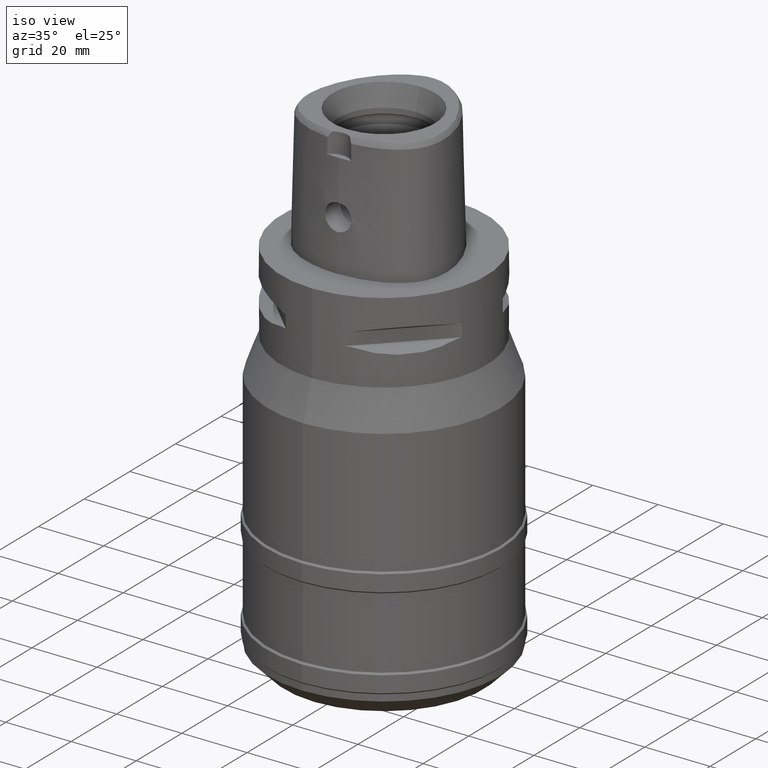
[diagram: clean part render]
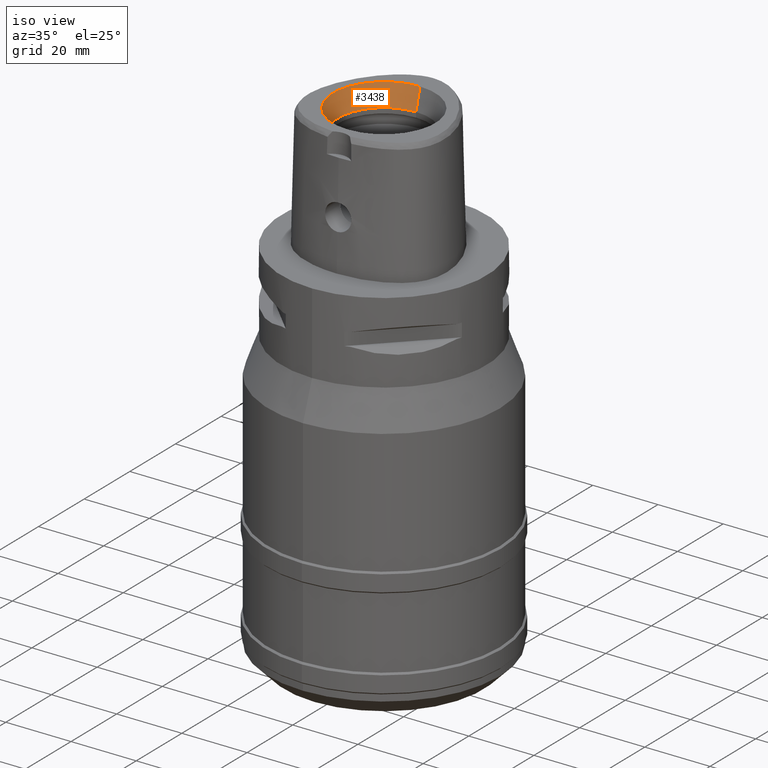
[diagram: same view with one face highlighted and labeled with its STEP entity id]
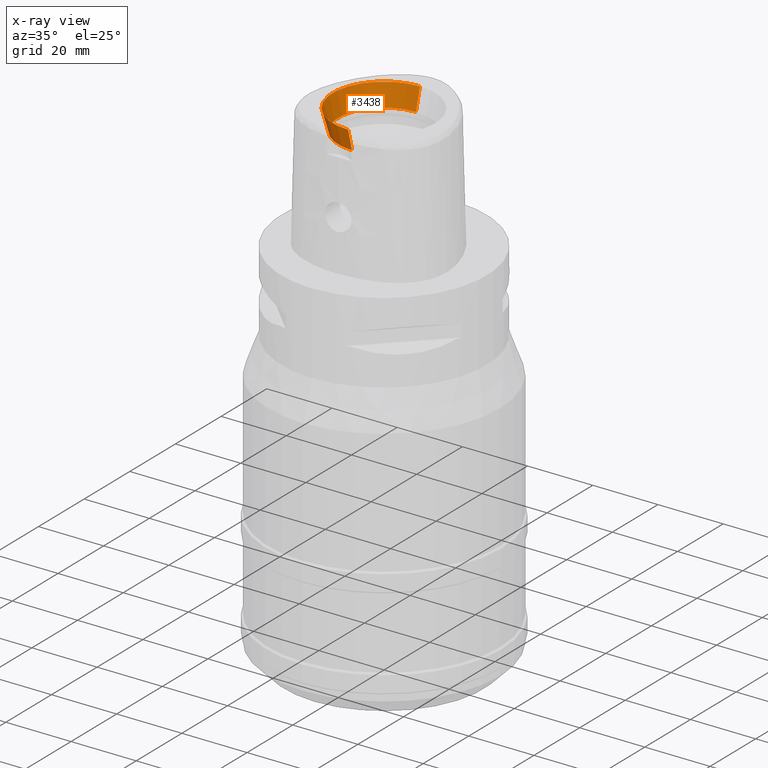
[diagram: x-ray of the same camera — body ghosted, the highlighted face saturated]
A machine part, iso view. The second image highlights one B-rep face of the part: STEP entity #3438.
The next image is the same camera in x-ray: the body ghosted, the highlighted face saturated — about 0% of this face is hidden behind the body in this view.
In plain terms, the highlighted conical surface has half-angle 15 deg.
Its self-contained STEP definition (entity closure, byte-faithful):
#116=CARTESIAN_POINT('',(0.E0,0.E0,3.8E1));
#117=DIRECTION('',(0.E0,0.E0,1.E0));
#118=DIRECTION('',(0.E0,1.E0,0.E0));
#119=AXIS2_PLACEMENT_3D('',#116,#117,#118);
#1368=CARTESIAN_POINT('',(0.E0,0.E0,3.16E1));
#1369=DIRECTION('',(0.E0,0.E0,1.E0));
#1370=DIRECTION('',(0.E0,1.E0,0.E0));
#1371=AXIS2_PLACEMENT_3D('',#1368,#1369,#1370);
#1376=DIRECTION('',(0.E0,-2.588190451026E-1,9.659258262891E-1));
#1377=VECTOR('',#1376,6.625767554625E0);
#1378=CARTESIAN_POINT('',(0.E0,-1.4E1,3.16E1));
#1379=LINE('',#1378,#1377);
#1391=DIRECTION('',(0.E0,2.588190451026E-1,9.659258262891E-1));
#1392=VECTOR('',#1391,6.625767554625E0);
#1393=CARTESIAN_POINT('',(0.E0,1.4E1,3.16E1));
#1394=LINE('',#1393,#1392);
#1661=CARTESIAN_POINT('',(0.E0,1.571487483156E1,3.8E1));
#1662=CARTESIAN_POINT('',(0.E0,-1.571487483156E1,3.8E1));
#1663=VERTEX_POINT('',#1661);
#1664=VERTEX_POINT('',#1662);
#1837=CARTESIAN_POINT('',(0.E0,-1.4E1,3.16E1));
#1838=VERTEX_POINT('',#1837);
#1839=CARTESIAN_POINT('',(0.E0,1.4E1,3.16E1));
#1840=VERTEX_POINT('',#1839);
#3425=CARTESIAN_POINT('',(0.E0,0.E0,3.48E1));
#3426=DIRECTION('',(0.E0,0.E0,1.E0));
#3427=DIRECTION('',(0.E0,1.E0,0.E0));
#3428=AXIS2_PLACEMENT_3D('',#3425,#3426,#3427);
#3429=CONICAL_SURFACE('',#3428,1.485743741578E1,1.5E1);
#3430=ORIENTED_EDGE('',*,*,#1856,.F.);
#3432=ORIENTED_EDGE('',*,*,#3431,.F.);
#3433=ORIENTED_EDGE('',*,*,#3418,.T.);
#3435=ORIENTED_EDGE('',*,*,#3434,.T.);
#3436=EDGE_LOOP('',(#3430,#3432,#3433,#3435));
#3437=FACE_OUTER_BOUND('',#3436,.F.);
#120=CIRCLE('',#119,1.571487483156E1);
#1372=CIRCLE('',#1371,1.4E1);
#1856=EDGE_CURVE('',#1663,#1664,#120,.T.);
#3418=EDGE_CURVE('',#1840,#1838,#1372,.T.);
#3431=EDGE_CURVE('',#1840,#1663,#1394,.T.);
#3434=EDGE_CURVE('',#1838,#1664,#1379,.T.);
#3438=ADVANCED_FACE('',(#3437),#3429,.F.);